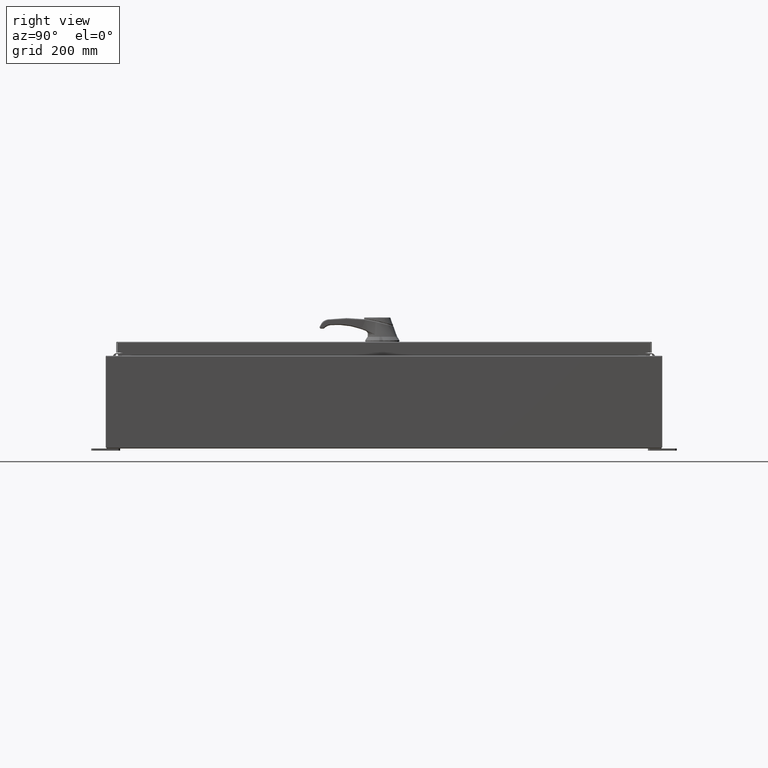
[diagram: clean part render]
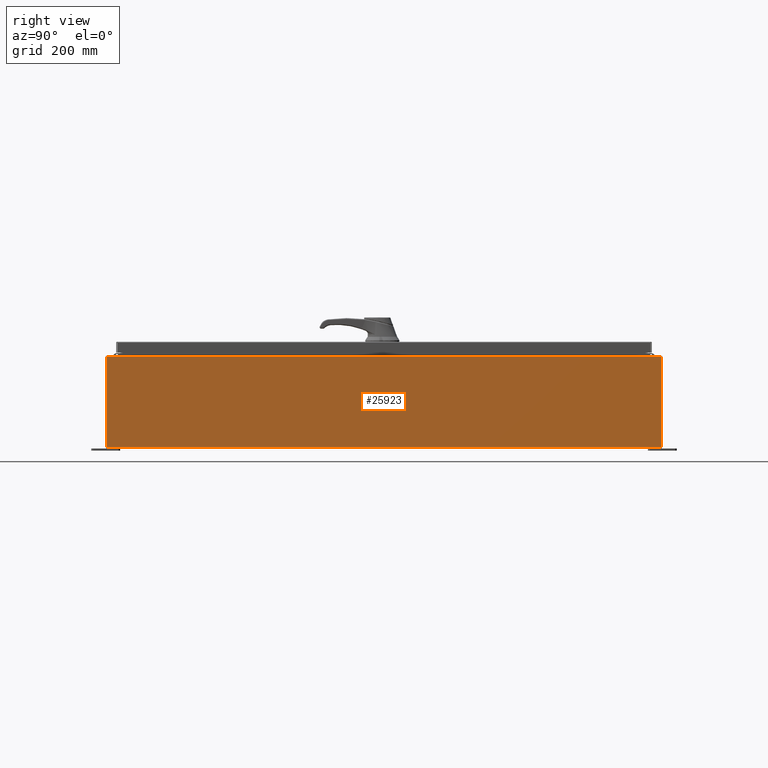
[diagram: same view with one face highlighted and labeled with its STEP entity id]
A machine part, right view. The second image highlights one B-rep face of the part: STEP entity #25923.
In plain terms, the highlighted planar face has unit normal (-1, 0, 0).
Its self-contained STEP definition (entity closure, byte-faithful):
#1980 = LINE ( 'NONE', #40529, #5209 ) ;
#5209 = VECTOR ( 'NONE', #113044, 39.37007874015748100 ) ;
#18121 = CARTESIAN_POINT ( 'NONE',  ( 18.00000000000002500, -23.92529999999998900, 7.837599999999998300 ) ) ;
#18497 = LINE ( 'NONE', #114521, #70446 ) ;
#18717 = CARTESIAN_POINT ( 'NONE',  ( 17.99999999999999600, 23.92529999999998600, 0.01300000000000203200 ) ) ;
#18897 = CARTESIAN_POINT ( 'NONE',  ( 17.99999999999999600, 0.0000000000000000000, -6.478858477053721600E-014 ) ) ;
#25207 = FACE_OUTER_BOUND ( 'NONE', #131644, .T. ) ;
#25923 = ADVANCED_FACE ( 'NONE', ( #25207 ), #39755, .F. ) ;
#25953 = EDGE_CURVE ( 'NONE', #98554, #43796, #49625, .T. ) ;
#27787 = EDGE_CURVE ( 'NONE', #37481, #43796, #18497, .T. ) ;
#28812 = CARTESIAN_POINT ( 'NONE',  ( 17.99999999999999600, -23.92529999999998900, 0.01299999999999896900 ) ) ;
#37141 = ORIENTED_EDGE ( 'NONE', *, *, #27787, .T. ) ;
#37481 = VERTEX_POINT ( 'NONE', #18121 ) ;
#39755 = PLANE ( 'NONE',  #117140 ) ;
#40529 = CARTESIAN_POINT ( 'NONE',  ( 17.99999999999999600, 23.92529999999998900, -6.478858477053721600E-014 ) ) ;
#43796 = VERTEX_POINT ( 'NONE', #28812 ) ;
#49625 = LINE ( 'NONE', #112735, #77180 ) ;
#50210 = DIRECTION ( 'NONE',  ( 3.584876173029202900E-015, 0.0000000000000000000, 1.000000000000000000 ) ) ;
#50579 = ORIENTED_EDGE ( 'NONE', *, *, #75472, .T. ) ;
#53128 = ORIENTED_EDGE ( 'NONE', *, *, #25953, .F. ) ;
#54310 = VECTOR ( 'NONE', #110310, 39.37007874015748100 ) ;
#57570 = LINE ( 'NONE', #120725, #54310 ) ;
#62787 = ORIENTED_EDGE ( 'NONE', *, *, #109817, .T. ) ;
#70446 = VECTOR ( 'NONE', #93691, 39.37007874015748100 ) ;
#75472 = EDGE_CURVE ( 'NONE', #98554, #130754, #1980, .T. ) ;
#77180 = VECTOR ( 'NONE', #111852, 39.37007874015748100 ) ;
#93691 = DIRECTION ( 'NONE',  ( -3.584876173029202900E-015, 0.0000000000000000000, -1.000000000000000000 ) ) ;
#98090 = CARTESIAN_POINT ( 'NONE',  ( 18.00000000000002500, 23.92529999999998600, 7.837599999999992100 ) ) ;
#98554 = VERTEX_POINT ( 'NONE', #18717 ) ;
#109817 = EDGE_CURVE ( 'NONE', #130754, #37481, #57570, .T. ) ;
#110310 = DIRECTION ( 'NONE',  ( -0.0000000000000000000, -1.000000000000000000, -0.0000000000000000000 ) ) ;
#111852 = DIRECTION ( 'NONE',  ( -1.637318952042341600E-031, -1.000000000000000000, -4.567295697298285000E-017 ) ) ;
#112288 = DIRECTION ( 'NONE',  ( -1.000000000000000000, 0.0000000000000000000, 3.584876173029202900E-015 ) ) ;
#112735 = CARTESIAN_POINT ( 'NONE',  ( 17.99999999999999600, -23.92529999999998900, 0.01299999999999984700 ) ) ;
#113044 = DIRECTION ( 'NONE',  ( 3.584876173029202900E-015, 0.0000000000000000000, 1.000000000000000000 ) ) ;
#114521 = CARTESIAN_POINT ( 'NONE',  ( 17.99999999999999600, -23.92529999999998900, -6.478858477053721600E-014 ) ) ;
#117140 = AXIS2_PLACEMENT_3D ( 'NONE', #18897, #112288, #50210 ) ;
#120725 = CARTESIAN_POINT ( 'NONE',  ( 18.00000000000002500, 23.92529999999998900, 7.837599999999992100 ) ) ;
#130754 = VERTEX_POINT ( 'NONE', #98090 ) ;
#131644 = EDGE_LOOP ( 'NONE', ( #62787, #37141, #53128, #50579 ) ) ;